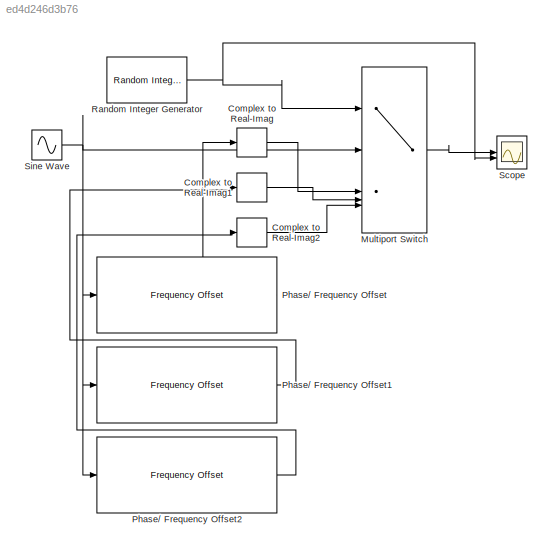
MODEL slx_ed4d246d3b76
KIND model
CONFIG AbsTol = auto
CONFIG EnableMultiTasking = off
CONFIG FixedStep = auto
CONFIG MaxStep = auto
CONFIG MinStep = auto
CONFIG RelTol = 1e-3
CONFIG SampleTimeConstraint = Unconstrained
CONFIG SolverName = VariableStepAuto
CONFIG StartTime = 0.0
CONFIG StopTime = 50
BLOCK [ComplexToRealImag] Complex to Real-Imag
BLOCK [ComplexToRealImag] Complex to Real-Imag1
BLOCK [ComplexToRealImag] Complex to Real-Imag2
BLOCK [MultiPortSwitch] Multiport Switch
  DataPortOrder = Zero-based contiguous
  DiagnosticForDefault = None
  InputSameDT = off
  Inputs = 4
  LockScale = on
  SaturateOnIntegerOverflow = off
  zeroidx = on
BLOCK [Reference] Phase// Frequency Offset  REF=commrflib2/Phase//
Frequency
Offset
  LibrarySourceBlock = commrfcorlib/Phase//\nFrequency\nOffset
  SourceBlock = commrflib2/Phase//\nFrequency\nOffset
  SourceType = Phase/Frequency Offset
BLOCK [Reference] Phase// Frequency Offset1  REF=commrflib2/Phase//
Frequency
Offset
  LibrarySourceBlock = commrfcorlib/Phase//\nFrequency\nOffset
  SourceBlock = commrflib2/Phase//\nFrequency\nOffset
  SourceType = Phase/Frequency Offset
BLOCK [Reference] Phase// Frequency Offset2  REF=commrflib2/Phase//
Frequency
Offset
  LibrarySourceBlock = commrfcorlib/Phase//\nFrequency\nOffset
  SourceBlock = commrflib2/Phase//\nFrequency\nOffset
  SourceType = Phase/Frequency Offset
BLOCK [Reference] Random Integer Generator  REF=commrandsrc3/Random Integer
Generator
  SourceBlock = commrandsrc3/Random Integer\nGenerator
  SourceType = Random Integer Generator
BLOCK [Scope] Scope
  Floating = off
  NumInputPorts = 2
  ScopeSpecificationString = Simulink.scopes.TimeScopeBlockCfg('CurrentConfiguration', extmgr.ConfigurationSet(extmgr.Configuration('Core','General UI',true),extmgr.Configuration('Core','Source UI',true),extmgr.Configuration('Sources','WiredSimulink',true),extmgr.Configuration('Visuals','Time Domain',true,'SerializedDisplays',{struct('MinYLimReal','-0.90774','MaxYLimReal','0.58406','YLabelReal','','MinYLimMag','0.00000','MaxY...<+1942ch>
BLOCK [Sin] Sine Wave
  Frequency = 2*pi
  SampleTime = 0.01
LINE Complex to Real-Imag1:1 -> Multiport Switch:4
LINE Complex to Real-Imag2:1 -> Multiport Switch:5
LINE Complex to Real-Imag:1 -> Multiport Switch:3
LINE Multiport Switch:1 -> Scope:1
LINE Phase// Frequency Offset1:1 -> Complex to Real-Imag1:1
LINE Phase// Frequency Offset2:1 -> Complex to Real-Imag2:1
LINE Phase// Frequency Offset:1 -> Complex to Real-Imag:1
NET Random Integer Generator:1 -> Multiport Switch:1, Scope:2
NET Sine Wave:1 -> Multiport Switch:2, Phase// Frequency Offset1:1, Phase// Frequency Offset2:1, Phase// Frequency Offset:1
note: NET lines group one-source signal fan-out (src -> all destinations, sorted); 1:1 wires keep LINE
